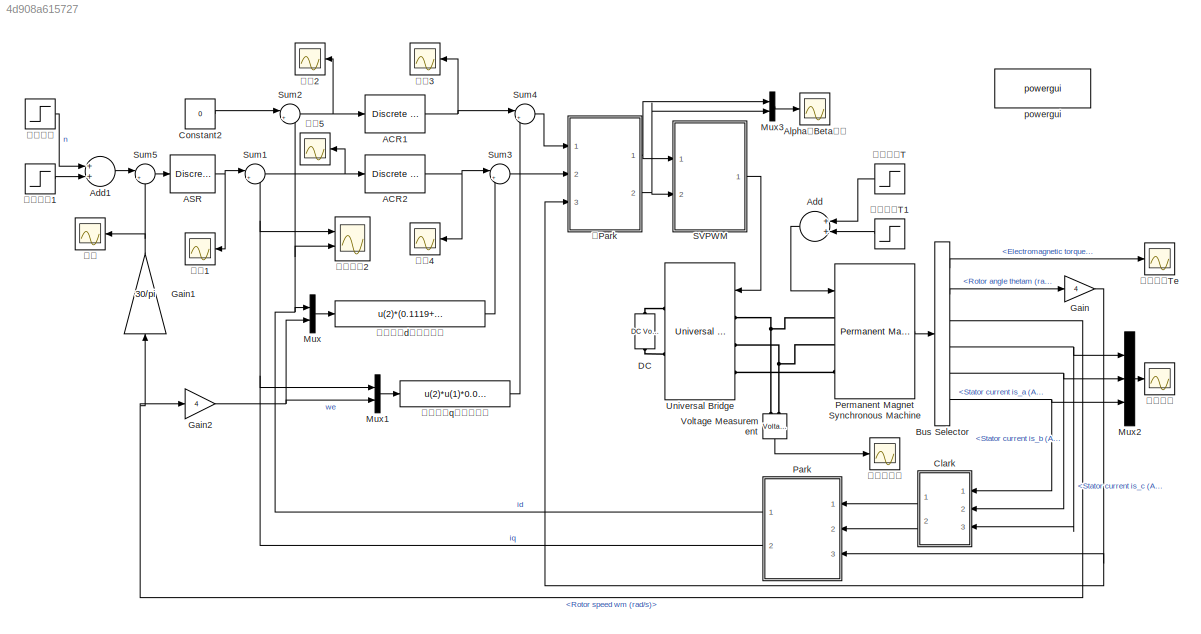
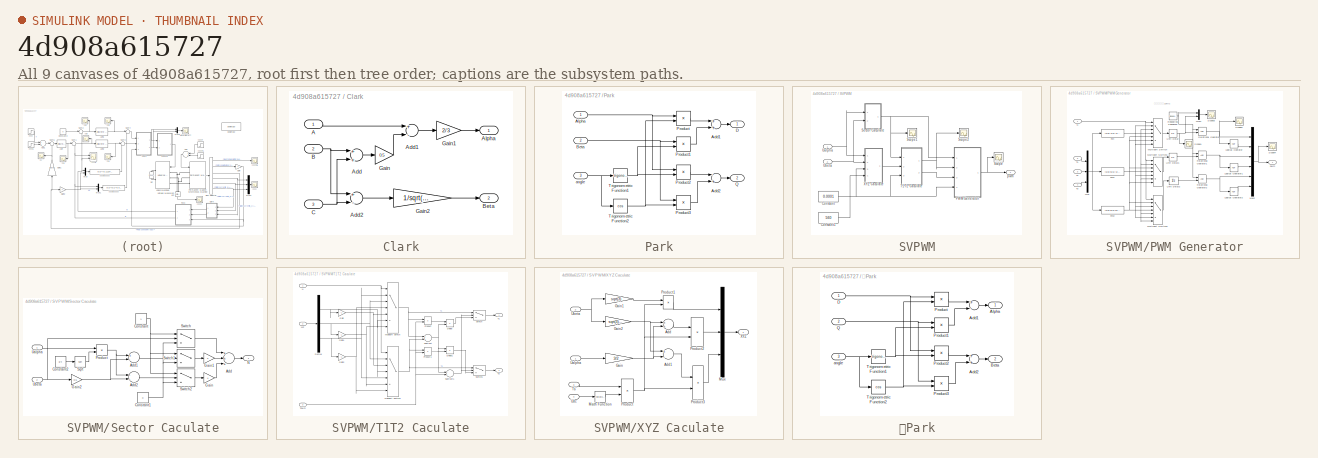
[diagram: thumbnail index - all 9 canvases of the model, root first then tree order]
MODEL slx_4d908a615727
KIND model
CONFIG AbsTol = auto
CONFIG FixedStep = auto
CONFIG InitFcn = flux=0.192;\nLd=0.0006033;\nLq=0.0006668;\nR=0.05;
CONFIG MaxStep = auto
CONFIG MinStep = auto
CONFIG RelTol = 1e-3
CONFIG SampleTimeConstraint = Unconstrained
CONFIG Solver = ode23tb
CONFIG SolverMode = Auto
CONFIG SolverName = ode23tb
CONFIG StartTime = 0.0
CONFIG StopTime = 1
BLOCK [Reference] ACR1  REF=powerlib_extras/Discrete 
Control Blocks/Discrete
PI Controller
  Ports = [1, 1]
  SourceBlock = powerlib_extras/Discrete \nControl Blocks/Discrete\nPI Controller
  SourceType = Discrete PI Controller
BLOCK [Reference] ACR2  REF=powerlib_extras/Discrete 
Control Blocks/Discrete
PI Controller
  Ports = [1, 1]
  SourceBlock = powerlib_extras/Discrete \nControl Blocks/Discrete\nPI Controller
  SourceType = Discrete PI Controller
BLOCK [Reference] ASR  REF=powerlib_extras/Discrete 
Control Blocks/Discrete
PI Controller
  Ports = [1, 1]
  SourceBlock = powerlib_extras/Discrete \nControl Blocks/Discrete\nPI Controller
  SourceType = Discrete PI Controller
BLOCK [Sum] Add
  InputSameDT = off
  OutDataTypeStr = Inherit: Inherit via internal rule
  Ports = [2, 1]
  SaturateOnIntegerOverflow = off
BLOCK [Sum] Add1
  InputSameDT = off
  OutDataTypeStr = Inherit: Inherit via internal rule
  Ports = [2, 1]
  SaturateOnIntegerOverflow = off
BLOCK [Scope] Alpha、Beta电压
  Ports = [1]
  ScopeSpecificationString = Simulink.scopes.TimeScopeBlockCfg('CurrentConfiguration', extmgr.ConfigurationSet(extmgr.Configuration('Core','General UI',true),extmgr.Configuration('Core','Source UI',true),extmgr.Configuration('Sources','WiredSimulink',true,'DataLoggingVariableName','ScopeData10','DataLoggingSaveFormat','StructureWithTime','SampleTime','0.00001','DataLoggingDecimation','1','DataLoggingDecimateData',true),extmgr...<+1767ch>
BLOCK [BusSelector] Bus Selector
  OutputSignals = Electromagnetic torque Te (N*m),Rotor angle thetam (rad),Rotor speed wm (rad/s),Stator current is_c (A),Stator current is_b (A),Stator current is_a (A)
  Ports = [1, 6]
BLOCK [SubSystem] Clark
  Ports = [3, 2]
  RequestExecContextInheritance = off
  Variant = off
BLOCK [Inport] Clark/A
  IconDisplay = Port number
BLOCK [Sum] Clark/Add
  InputSameDT = off
  OutDataTypeStr = Inherit: Inherit via internal rule
  Ports = [2, 1]
  SaturateOnIntegerOverflow = off
BLOCK [Sum] Clark/Add1
  InputSameDT = off
  Inputs = +-
  OutDataTypeStr = Inherit: Inherit via internal rule
  Ports = [2, 1]
  SaturateOnIntegerOverflow = off
BLOCK [Sum] Clark/Add2
  InputSameDT = off
  Inputs = +-
  OutDataTypeStr = Inherit: Inherit via internal rule
  Ports = [2, 1]
  SaturateOnIntegerOverflow = off
BLOCK [Outport] Clark/Alpha
  IconDisplay = Port number
BLOCK [Inport] Clark/B
  IconDisplay = Port number
  Port = 2
BLOCK [Outport] Clark/Beta
  IconDisplay = Port number
  Port = 2
BLOCK [Inport] Clark/C
  IconDisplay = Port number
  Port = 3
BLOCK [Gain] Clark/Gain
  Gain = 0.5
  OutDataTypeStr = Inherit: Inherit via internal rule
  ParamDataTypeStr = Inherit: Inherit via internal rule
  SaturateOnIntegerOverflow = off
BLOCK [Gain] Clark/Gain1
  Gain = 2/3
  OutDataTypeStr = Inherit: Inherit via internal rule
  ParamDataTypeStr = Inherit: Inherit via internal rule
  SaturateOnIntegerOverflow = off
BLOCK [Gain] Clark/Gain2
  Gain = 1/sqrt(3)
  OutDataTypeStr = Inherit: Inherit via internal rule
  ParamDataTypeStr = Inherit: Inherit via internal rule
  SaturateOnIntegerOverflow = off
BLOCK [Constant] Constant2
  Value = 0
BLOCK [Reference] DC  REF=powerlib/Electrical
Sources/DC Voltage Source
  Ports = [0, 0, 0, 0, 0, 1, 1]
  SourceBlock = powerlib/Electrical\nSources/DC Voltage Source
  SourceType = DC Voltage Source
BLOCK [Gain] Gain
  Gain = 4
  OutDataTypeStr = Inherit: Inherit via internal rule
  ParamDataTypeStr = Inherit: Inherit via internal rule
  SaturateOnIntegerOverflow = off
BLOCK [Gain] Gain1
  Gain = 30/pi
  OutDataTypeStr = Inherit: Inherit via internal rule
  ParamDataTypeStr = Inherit: Inherit via internal rule
  SaturateOnIntegerOverflow = off
BLOCK [Gain] Gain2
  Gain = 4
  OutDataTypeStr = Inherit: Inherit via internal rule
  ParamDataTypeStr = Inherit: Inherit via internal rule
  SaturateOnIntegerOverflow = off
BLOCK [Mux] Mux
  DisplayOption = bar
  Inputs = 2
  Ports = [2, 1]
BLOCK [Mux] Mux1
  DisplayOption = bar
  Inputs = 2
  Ports = [2, 1]
BLOCK [Mux] Mux2
  DisplayOption = bar
  Inputs = 3
  Ports = [3, 1]
BLOCK [Mux] Mux3
  DisplayOption = bar
  Inputs = 2
  Ports = [2, 1]
BLOCK [SubSystem] Park
  Ports = [3, 2]
  RequestExecContextInheritance = off
  Variant = off
BLOCK [Sum] Park/Add1
  InputSameDT = off
  OutDataTypeStr = Inherit: Inherit via internal rule
  Ports = [2, 1]
  SaturateOnIntegerOverflow = off
BLOCK [Sum] Park/Add2
  InputSameDT = off
  Inputs = -+
  OutDataTypeStr = Inherit: Inherit via internal rule
  Ports = [2, 1]
  SaturateOnIntegerOverflow = off
BLOCK [Inport] Park/Alpha
  IconDisplay = Port number
BLOCK [Inport] Park/Beta
  IconDisplay = Port number
  Port = 2
BLOCK [Outport] Park/D
  IconDisplay = Port number
BLOCK [Product] Park/Product
  InputSameDT = off
  OutDataTypeStr = Inherit: Inherit via internal rule
  Ports = [2, 1]
  RndMeth = Floor
  SaturateOnIntegerOverflow = off
BLOCK [Product] Park/Product1
  InputSameDT = off
  OutDataTypeStr = Inherit: Inherit via internal rule
  Ports = [2, 1]
  RndMeth = Floor
  SaturateOnIntegerOverflow = off
BLOCK [Product] Park/Product2
  InputSameDT = off
  OutDataTypeStr = Inherit: Inherit via internal rule
  Ports = [2, 1]
  RndMeth = Floor
  SaturateOnIntegerOverflow = off
BLOCK [Product] Park/Product3
  InputSameDT = off
  OutDataTypeStr = Inherit: Inherit via internal rule
  Ports = [2, 1]
  RndMeth = Floor
  SaturateOnIntegerOverflow = off
BLOCK [Outport] Park/Q
  IconDisplay = Port number
  Port = 2
BLOCK [Trigonometry] Park/Trigonometric Function1
  Ports = [1, 1]
BLOCK [Trigonometry] Park/Trigonometric Function2
  Operator = cos
  Ports = [1, 1]
BLOCK [Inport] Park/angle
  IconDisplay = Port number
  Port = 3
BLOCK [Reference] Permanent Magnet Synchronous Machine  REF=powerlib/Machines/Permanent Magnet
Synchronous Machine
  Ports = [1, 1, 0, 0, 0, 3]
  SourceBlock = powerlib/Machines/Permanent Magnet\nSynchronous Machine
  SourceType = Permanent Magnet Synchronous Machine
BLOCK [SubSystem] SVPWM
  Ports = [2, 1]
  RequestExecContextInheritance = off
  Variant = off
BLOCK [Constant] SVPWM/Constant
  Value = 0.0001
BLOCK [Constant] SVPWM/Constant1
  Value = 560
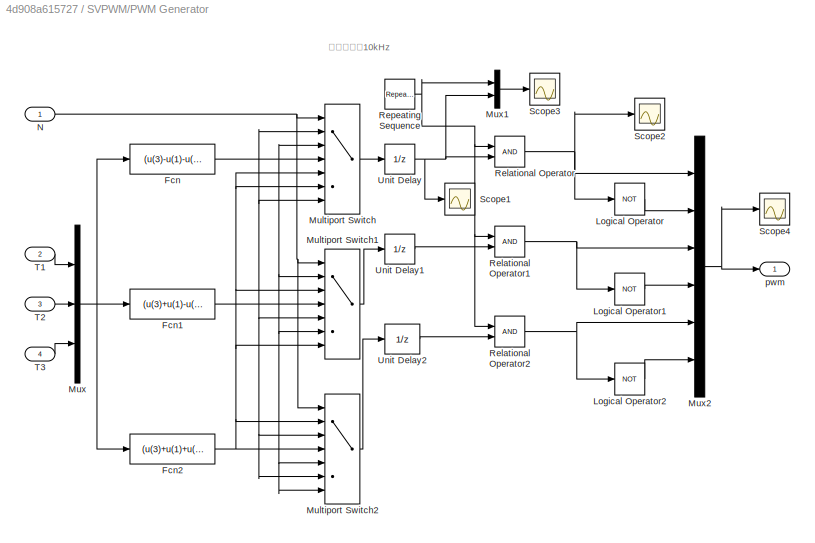
BLOCK [SubSystem] SVPWM/PWM Generator
  Ports = [4, 1]
  RequestExecContextInheritance = off
  Variant = off
BLOCK [Fcn] SVPWM/PWM Generator/Fcn
  Expr = (u(3)-u(1)-u(2))/4
BLOCK [Fcn] SVPWM/PWM Generator/Fcn1
  Expr = (u(3)+u(1)-u(2))/4
BLOCK [Fcn] SVPWM/PWM Generator/Fcn2
  Expr = (u(3)+u(1)+u(2))/4
BLOCK [Logic] SVPWM/PWM Generator/Logical Operator
  AllPortsSameDT = off
  Operator = NOT
  OutDataTypeStr = boolean
  Ports = [1, 1]
BLOCK [Logic] SVPWM/PWM Generator/Logical Operator1
  AllPortsSameDT = off
  Operator = NOT
  OutDataTypeStr = boolean
  Ports = [1, 1]
BLOCK [Logic] SVPWM/PWM Generator/Logical Operator2
  AllPortsSameDT = off
  Operator = NOT
  OutDataTypeStr = boolean
  Ports = [1, 1]
BLOCK [MultiPortSwitch] SVPWM/PWM Generator/Multiport Switch
  DiagnosticForDefault = None
  InputSameDT = off
  Inputs = 6
  Ports = [7, 1]
  SaturateOnIntegerOverflow = off
BLOCK [MultiPortSwitch] SVPWM/PWM Generator/Multiport Switch1
  DiagnosticForDefault = None
  InputSameDT = off
  Inputs = 6
  Ports = [7, 1]
  SaturateOnIntegerOverflow = off
BLOCK [MultiPortSwitch] SVPWM/PWM Generator/Multiport Switch2
  DiagnosticForDefault = None
  InputSameDT = off
  Inputs = 6
  Ports = [7, 1]
  SaturateOnIntegerOverflow = off
BLOCK [Mux] SVPWM/PWM Generator/Mux
  DisplayOption = bar
  Inputs = 3
  Ports = [3, 1]
BLOCK [Mux] SVPWM/PWM Generator/Mux1
  DisplayOption = bar
  Inputs = 2
  Ports = [2, 1]
BLOCK [Mux] SVPWM/PWM Generator/Mux2
  DisplayOption = bar
  Inputs = 6
  Ports = [6, 1]
BLOCK [Inport] SVPWM/PWM Generator/N
  IconDisplay = Port number
BLOCK [RelationalOperator] SVPWM/PWM Generator/Relational Operator
  InputSameDT = off
  OutDataTypeStr = boolean
  Ports = [2, 1]
BLOCK [RelationalOperator] SVPWM/PWM Generator/Relational Operator1
  InputSameDT = off
  OutDataTypeStr = boolean
  Ports = [2, 1]
BLOCK [RelationalOperator] SVPWM/PWM Generator/Relational Operator2
  InputSameDT = off
  OutDataTypeStr = boolean
  Ports = [2, 1]
BLOCK [Reference] SVPWM/PWM Generator/Repeating Sequence  REF=simulink/Sources/Repeating
Sequence
  Ports = [0, 1]
  SourceBlock = simulink/Sources/Repeating\nSequence
  SourceType = Repeating table
BLOCK [Scope] SVPWM/PWM Generator/Scope1
  Ports = [1]
  ScopeSpecificationString = Simulink.scopes.TimeScopeBlockCfg('CurrentConfiguration', extmgr.ConfigurationSet(extmgr.Configuration('Core','General UI',true),extmgr.Configuration('Core','Source UI',true),extmgr.Configuration('Sources','WiredSimulink',true,'DataLoggingVariableName','ScopeData1','DataLoggingSaveFormat','Array','DataLoggingDecimation','1','DataLoggingDecimateData',true),extmgr.Configuration('Visuals','Time Domai...<+1734ch>
BLOCK [Scope] SVPWM/PWM Generator/Scope2
  Ports = [1]
  ScopeSpecificationString = Simulink.scopes.TimeScopeBlockCfg('CurrentConfiguration', extmgr.ConfigurationSet(extmgr.Configuration('Core','General UI',true),extmgr.Configuration('Core','Source UI',true),extmgr.Configuration('Sources','WiredSimulink',true,'DataLoggingVariableName','ScopeData3','DataLoggingSaveFormat','Array','DataLoggingDecimation','1','DataLoggingDecimateData',true),extmgr.Configuration('Visuals','Time Domai...<+1728ch>
BLOCK [Scope] SVPWM/PWM Generator/Scope3
  Ports = [1]
  ScopeSpecificationString = Simulink.scopes.TimeScopeBlockCfg('CurrentConfiguration', extmgr.ConfigurationSet(extmgr.Configuration('Core','General UI',true),extmgr.Configuration('Core','Source UI',true),extmgr.Configuration('Sources','WiredSimulink',true,'DataLoggingVariableName','ScopeData4','DataLoggingSaveFormat','Array','DataLoggingDecimation','1','DataLoggingDecimateData',true,'SampleTime','0.000001'),extmgr.Configurati...<+1784ch>
BLOCK [Scope] SVPWM/PWM Generator/Scope4
  Ports = [1]
  ScopeSpecificationString = C++SS(StrPVP('Location','[5, 34, 1925, 1020]'),StrPVP('Open','off'),MxPVP('AxesTitles',24,'struct(''axes1'',''%<SignalLabel>'')'),MxPVP('ScopeGraphics',28,'struct(''FigureColor'',''[0.5 0.5 0.5]'',''AxesColor'',''[0 0 0]'',''AxesTickColor'',''[1 1 1]'',''LineColors'',''[1 1 0;1 0 1;0 1 1;1 0 0;0 1 0;0 0 1]'',''LineStyles'',''-|-|-|-|-|-'',''LineWidths'',''[0.5 0.5 0.5 0.5 0.5 0.5]'',''MarkerStyles...<+224ch>
BLOCK [Inport] SVPWM/PWM Generator/T1
  IconDisplay = Port number
  Port = 2
BLOCK [Inport] SVPWM/PWM Generator/T2
  IconDisplay = Port number
  Port = 3
BLOCK [Inport] SVPWM/PWM Generator/T3
  IconDisplay = Port number
  Port = 4
BLOCK [UnitDelay] SVPWM/PWM Generator/Unit Delay
  InputProcessing = Elements as channels (sample based)
  SampleTime = 0.0001
BLOCK [UnitDelay] SVPWM/PWM Generator/Unit Delay1
  InputProcessing = Elements as channels (sample based)
  SampleTime = 0.0001
BLOCK [UnitDelay] SVPWM/PWM Generator/Unit Delay2
  InputProcessing = Elements as channels (sample based)
  SampleTime = 0.0001
BLOCK [Outport] SVPWM/PWM Generator/pwm
  IconDisplay = Port number
BLOCK [Scope] SVPWM/Scope
  Ports = [1]
  ScopeSpecificationString = C++SS(StrPVP('Location','[5, 34, 1925, 1020]'),StrPVP('Open','off'),StrPVP('ZoomMode','xonly'),MxPVP('AxesTitles',24,'struct(''axes1'',''%<SignalLabel>'')'),MxPVP('ScopeGraphics',28,'struct(''FigureColor'',''[0.5 0.5 0.5]'',''AxesColor'',''[0 0 0]'',''AxesTickColor'',''[1 1 1]'',''LineColors'',''[1 1 0;1 0 1;0 1 1;1 0 0;0 1 0;0 0 1]'',''LineStyles'',''-|-|-|-|-|-'',''LineWidths'',''[0.5 0.5 0.5 0....<+219ch>
BLOCK [Scope] SVPWM/Scope1
  Ports = [1]
  ScopeSpecificationString = Simulink.scopes.TimeScopeBlockCfg('CurrentConfiguration', extmgr.ConfigurationSet(extmgr.Configuration('Core','General UI',true),extmgr.Configuration('Core','Source UI',true),extmgr.Configuration('Sources','WiredSimulink',true,'DataLoggingVariableName','ScopeData2','DataLoggingSaveFormat','Array','DataLoggingDecimation','1','DataLoggingDecimateData',true),extmgr.Configuration('Visuals','Time Domai...<+1694ch>
BLOCK [Scope] SVPWM/Scope2
  Ports = [1]
  ScopeSpecificationString = C++SS(StrPVP('Location','[5, 34, 1925, 1020]'),StrPVP('Open','off'),StrPVP('ZoomMode','xonly'),MxPVP('AxesTitles',24,'struct(''axes1'',''%<SignalLabel>'')'),MxPVP('ScopeGraphics',28,'struct(''FigureColor'',''[0.5 0.5 0.5]'',''AxesColor'',''[0 0 0]'',''AxesTickColor'',''[1 1 1]'',''LineColors'',''[1 1 0;1 0 1;0 1 1;1 0 0;0 1 0;0 0 1]'',''LineStyles'',''-|-|-|-|-|-'',''LineWidths'',''[0.5 0.5 0.5 0....<+252ch>
BLOCK [SubSystem] SVPWM/Sector Caculate
  Ports = [2, 1]
  RequestExecContextInheritance = off
  Variant = off
BLOCK [Sum] SVPWM/Sector Caculate/Add
  InputSameDT = off
  Inputs = +++
  OutDataTypeStr = Inherit: Inherit via internal rule
  Ports = [3, 1]
  SaturateOnIntegerOverflow = off
BLOCK [Sum] SVPWM/Sector Caculate/Add1
  InputSameDT = off
  Inputs = +-
  OutDataTypeStr = Inherit: Inherit via internal rule
  Ports = [2, 1]
  SaturateOnIntegerOverflow = off
BLOCK [Sum] SVPWM/Sector Caculate/Add2
  InputSameDT = off
  Inputs = --
  OutDataTypeStr = Inherit: Inherit via internal rule
  Ports = [2, 1]
  SaturateOnIntegerOverflow = off
BLOCK [Constant] SVPWM/Sector Caculate/Constant
BLOCK [Constant] SVPWM/Sector Caculate/Constant1
  Value = 0
BLOCK [Constant] SVPWM/Sector Caculate/Constant2
  Value = 3/4
BLOCK [Gain] SVPWM/Sector Caculate/Gain
  Gain = 4
  OutDataTypeStr = Inherit: Inherit via internal rule
  ParamDataTypeStr = Inherit: Inherit via internal rule
  SaturateOnIntegerOverflow = off
BLOCK [Gain] SVPWM/Sector Caculate/Gain1
  Gain = 2
  OutDataTypeStr = Inherit: Inherit via internal rule
  ParamDataTypeStr = Inherit: Inherit via internal rule
  SaturateOnIntegerOverflow = off
BLOCK [Gain] SVPWM/Sector Caculate/Gain2
  Gain = 0.5
  OutDataTypeStr = Inherit: Inherit via internal rule
  ParamDataTypeStr = Inherit: Inherit via internal rule
  SaturateOnIntegerOverflow = off
BLOCK [Outport] SVPWM/Sector Caculate/N
  IconDisplay = Port number
BLOCK [Product] SVPWM/Sector Caculate/Product
  InputSameDT = off
  OutDataTypeStr = Inherit: Inherit via internal rule
  Ports = [2, 1]
  RndMeth = Floor
  SaturateOnIntegerOverflow = off
BLOCK [Sqrt] SVPWM/Sector Caculate/Sqrt
BLOCK [Switch] SVPWM/Sector Caculate/Switch
  Criteria = u2 > Threshold
  InputSameDT = off
  SaturateOnIntegerOverflow = off
BLOCK [Switch] SVPWM/Sector Caculate/Switch1
  Criteria = u2 > Threshold
  InputSameDT = off
  SaturateOnIntegerOverflow = off
BLOCK [Switch] SVPWM/Sector Caculate/Switch2
  Criteria = u2 > Threshold
  InputSameDT = off
  SaturateOnIntegerOverflow = off
BLOCK [Inport] SVPWM/Sector Caculate/Ualpha
  IconDisplay = Port number
BLOCK [Inport] SVPWM/Sector Caculate/Ubeta 
  IconDisplay = Port number
  Port = 2
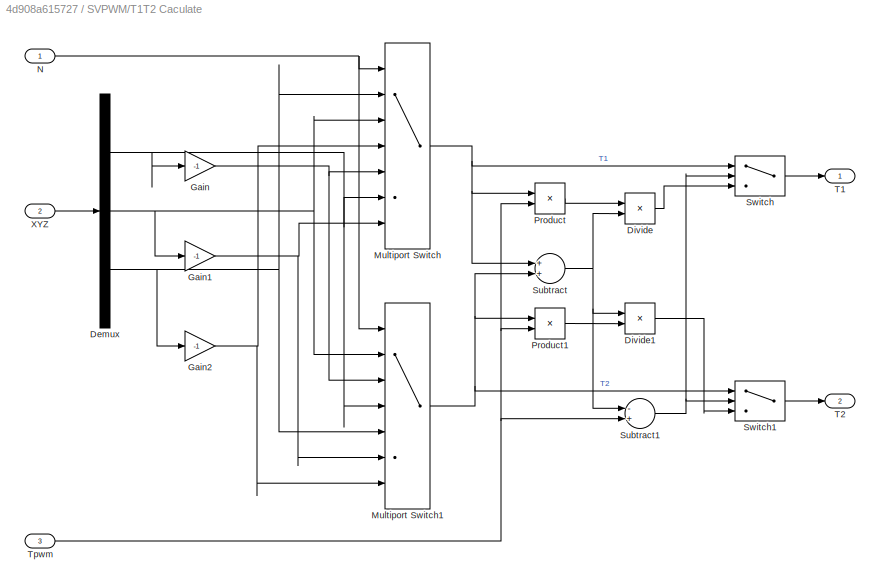
BLOCK [SubSystem] SVPWM/T1T2 Caculate
  Ports = [3, 2]
  RequestExecContextInheritance = off
  Variant = off
BLOCK [Demux] SVPWM/T1T2 Caculate/Demux
  DisplayOption = bar
  Outputs = 3
  Ports = [1, 3]
BLOCK [Product] SVPWM/T1T2 Caculate/Divide
  InputSameDT = off
  Inputs = */
  OutDataTypeStr = Inherit: Inherit via internal rule
  Ports = [2, 1]
  RndMeth = Floor
  SaturateOnIntegerOverflow = off
BLOCK [Product] SVPWM/T1T2 Caculate/Divide1
  InputSameDT = off
  Inputs = /*
  OutDataTypeStr = Inherit: Inherit via internal rule
  Ports = [2, 1]
  RndMeth = Floor
  SaturateOnIntegerOverflow = off
BLOCK [Gain] SVPWM/T1T2 Caculate/Gain
  Gain = -1
  OutDataTypeStr = Inherit: Inherit via internal rule
  ParamDataTypeStr = Inherit: Inherit via internal rule
  SaturateOnIntegerOverflow = off
BLOCK [Gain] SVPWM/T1T2 Caculate/Gain1
  Gain = -1
  OutDataTypeStr = Inherit: Inherit via internal rule
  ParamDataTypeStr = Inherit: Inherit via internal rule
  SaturateOnIntegerOverflow = off
BLOCK [Gain] SVPWM/T1T2 Caculate/Gain2
  Gain = -1
  OutDataTypeStr = Inherit: Inherit via internal rule
  ParamDataTypeStr = Inherit: Inherit via internal rule
  SaturateOnIntegerOverflow = off
BLOCK [MultiPortSwitch] SVPWM/T1T2 Caculate/Multiport Switch
  DiagnosticForDefault = None
  InputSameDT = off
  Inputs = 6
  Ports = [7, 1]
  SaturateOnIntegerOverflow = off
BLOCK [MultiPortSwitch] SVPWM/T1T2 Caculate/Multiport Switch1
  DiagnosticForDefault = None
  InputSameDT = off
  Inputs = 6
  Ports = [7, 1]
  SaturateOnIntegerOverflow = off
BLOCK [Inport] SVPWM/T1T2 Caculate/N
  IconDisplay = Port number
BLOCK [Product] SVPWM/T1T2 Caculate/Product
  InputSameDT = off
  OutDataTypeStr = Inherit: Inherit via internal rule
  Ports = [2, 1]
  RndMeth = Floor
  SaturateOnIntegerOverflow = off
BLOCK [Product] SVPWM/T1T2 Caculate/Product1
  InputSameDT = off
  OutDataTypeStr = Inherit: Inherit via internal rule
  Ports = [2, 1]
  RndMeth = Floor
  SaturateOnIntegerOverflow = off
BLOCK [Sum] SVPWM/T1T2 Caculate/Subtract
  InputSameDT = off
  OutDataTypeStr = Inherit: Inherit via internal rule
  Ports = [2, 1]
  SaturateOnIntegerOverflow = off
BLOCK [Sum] SVPWM/T1T2 Caculate/Subtract1
  InputSameDT = off
  Inputs = -+
  OutDataTypeStr = Inherit: Inherit via internal rule
  Ports = [2, 1]
  SaturateOnIntegerOverflow = off
BLOCK [Switch] SVPWM/T1T2 Caculate/Switch
  Criteria = u2 > Threshold
  InputSameDT = off
  SaturateOnIntegerOverflow = off
BLOCK [Switch] SVPWM/T1T2 Caculate/Switch1
  Criteria = u2 > Threshold
  InputSameDT = off
  SaturateOnIntegerOverflow = off
BLOCK [Outport] SVPWM/T1T2 Caculate/T1 
  IconDisplay = Port number
BLOCK [Outport] SVPWM/T1T2 Caculate/T2
  IconDisplay = Port number
  Port = 2
BLOCK [Inport] SVPWM/T1T2 Caculate/Tpwm
  IconDisplay = Port number
  Port = 3
BLOCK [Inport] SVPWM/T1T2 Caculate/XYZ
  IconDisplay = Port number
  Port = 2
BLOCK [Inport] SVPWM/Ualpha
  IconDisplay = Port number
BLOCK [Inport] SVPWM/Ubeta
  IconDisplay = Port number
  Port = 2
BLOCK [SubSystem] SVPWM/XYZ Caculate
  Ports = [4, 1]
  RequestExecContextInheritance = off
  Variant = off
BLOCK [Sum] SVPWM/XYZ Caculate/Add
  InputSameDT = off
  OutDataTypeStr = Inherit: Inherit via internal rule
  Ports = [2, 1]
  SaturateOnIntegerOverflow = off
BLOCK [Sum] SVPWM/XYZ Caculate/Add1
  InputSameDT = off
  Inputs = +-
  OutDataTypeStr = Inherit: Inherit via internal rule
  Ports = [2, 1]
  SaturateOnIntegerOverflow = off
BLOCK [Gain] SVPWM/XYZ Caculate/Gain
  Gain = 3/2
  OutDataTypeStr = Inherit: Inherit via internal rule
  ParamDataTypeStr = Inherit: Inherit via internal rule
  SaturateOnIntegerOverflow = off
BLOCK [Gain] SVPWM/XYZ Caculate/Gain1
  Gain = sqrt(3)
  OutDataTypeStr = Inherit: Inherit via internal rule
  ParamDataTypeStr = Inherit: Inherit via internal rule
  SaturateOnIntegerOverflow = off
BLOCK [Gain] SVPWM/XYZ Caculate/Gain2
  Gain = sqrt(3)/2
  OutDataTypeStr = Inherit: Inherit via internal rule
  ParamDataTypeStr = Inherit: Inherit via internal rule
  SaturateOnIntegerOverflow = off
BLOCK [Math] SVPWM/XYZ Caculate/Math Function
  Operator = reciprocal
  Ports = [1, 1]
BLOCK [Mux] SVPWM/XYZ Caculate/Mux
  DisplayOption = bar
  Inputs = 3
  Ports = [3, 1]
BLOCK [Product] SVPWM/XYZ Caculate/Product
  InputSameDT = off
  OutDataTypeStr = Inherit: Inherit via internal rule
  Ports = [2, 1]
  RndMeth = Floor
  SaturateOnIntegerOverflow = off
BLOCK [Product] SVPWM/XYZ Caculate/Product1
  InputSameDT = off
  OutDataTypeStr = Inherit: Inherit via internal rule
  Ports = [2, 1]
  RndMeth = Floor
  SaturateOnIntegerOverflow = off
BLOCK [Product] SVPWM/XYZ Caculate/Product2
  InputSameDT = off
  OutDataTypeStr = Inherit: Inherit via internal rule
  Ports = [2, 1]
  RndMeth = Floor
  SaturateOnIntegerOverflow = off
BLOCK [Product] SVPWM/XYZ Caculate/Product3
  InputSameDT = off
  OutDataTypeStr = Inherit: Inherit via internal rule
  Ports = [2, 1]
  RndMeth = Floor
  SaturateOnIntegerOverflow = off
BLOCK [Inport] SVPWM/XYZ Caculate/Ts
  IconDisplay = Port number
  Port = 3
BLOCK [Inport] SVPWM/XYZ Caculate/Ualpha
  IconDisplay = Port number
BLOCK [Inport] SVPWM/XYZ Caculate/Ubeta
  IconDisplay = Port number
  Port = 2
BLOCK [Inport] SVPWM/XYZ Caculate/Udc
  IconDisplay = Port number
  Port = 4
BLOCK [Outport] SVPWM/XYZ Caculate/XYZ
  IconDisplay = Port number
BLOCK [Outport] SVPWM/pwm
  IconDisplay = Port number
BLOCK [Sum] Sum1
  IconShape = round
  InputSameDT = off
  Inputs = |+-
  OutDataTypeStr = Inherit: Inherit via internal rule
  Ports = [2, 1]
  SaturateOnIntegerOverflow = off
BLOCK [Sum] Sum2
  IconShape = round
  InputSameDT = off
  Inputs = |+-
  OutDataTypeStr = Inherit: Inherit via internal rule
  Ports = [2, 1]
  SaturateOnIntegerOverflow = off
BLOCK [Sum] Sum3
  IconShape = round
  InputSameDT = off
  Inputs = |++
  OutDataTypeStr = Inherit: Inherit via internal rule
  Ports = [2, 1]
  SaturateOnIntegerOverflow = off
BLOCK [Sum] Sum4
  IconShape = round
  InputSameDT = off
  Inputs = |+-
  OutDataTypeStr = Inherit: Inherit via internal rule
  Ports = [2, 1]
  SaturateOnIntegerOverflow = off
BLOCK [Sum] Sum5
  IconShape = round
  InputSameDT = off
  Inputs = |+-
  OutDataTypeStr = Inherit: Inherit via internal rule
  Ports = [2, 1]
  SaturateOnIntegerOverflow = off
BLOCK [Reference] Universal Bridge  REF=powerlib/Power
Electronics/Universal Bridge
  Ports = [1, 0, 0, 0, 0, 3, 2]
  SourceBlock = powerlib/Power\nElectronics/Universal Bridge
  SourceType = Universal Bridge
BLOCK [Reference] Voltage Measurement  REF=powerlib/Measurements/Voltage Measurement
  Ports = [0, 1, 0, 0, 0, 2]
  SourceBlock = powerlib/Measurements/Voltage Measurement
  SourceType = Voltage Measurement
  UserDataPersistent = on
BLOCK [Reference] powergui  REF=powerlib/powergui
  Ports = []
  Priority = 1
  SourceBlock = powerlib/powergui
  SourceType = PSB option menu block
  UserDataPersistent = on
BLOCK [Fcn] 前馈解耦d轴补偿电压
  Expr = u(2)*(0.1119+u(1)*0.0009215)
BLOCK [Fcn] 前馈解耦q轴补偿电压
  Expr = u(2)*u(1)*0.001018
BLOCK [SubSystem] 反Park
  Ports = [3, 2]
  RequestExecContextInheritance = off
  Variant = off
BLOCK [Sum] 反Park/Add1
  InputSameDT = off
  Inputs = +-
  OutDataTypeStr = Inherit: Inherit via internal rule
  Ports = [2, 1]
  SaturateOnIntegerOverflow = off
BLOCK [Sum] 反Park/Add2
  InputSameDT = off
  OutDataTypeStr = Inherit: Inherit via internal rule
  Ports = [2, 1]
  SaturateOnIntegerOverflow = off
BLOCK [Outport] 反Park/Alpha
  IconDisplay = Port number
BLOCK [Outport] 反Park/Beta
  IconDisplay = Port number
  Port = 2
BLOCK [Inport] 反Park/D
  IconDisplay = Port number
BLOCK [Product] 反Park/Product
  InputSameDT = off
  OutDataTypeStr = Inherit: Inherit via internal rule
  Ports = [2, 1]
  RndMeth = Floor
  SaturateOnIntegerOverflow = off
BLOCK [Product] 反Park/Product1
  InputSameDT = off
  OutDataTypeStr = Inherit: Inherit via internal rule
  Ports = [2, 1]
  RndMeth = Floor
  SaturateOnIntegerOverflow = off
BLOCK [Product] 反Park/Product2
  InputSameDT = off
  OutDataTypeStr = Inherit: Inherit via internal rule
  Ports = [2, 1]
  RndMeth = Floor
  SaturateOnIntegerOverflow = off
BLOCK [Product] 反Park/Product3
  InputSameDT = off
  OutDataTypeStr = Inherit: Inherit via internal rule
  Ports = [2, 1]
  RndMeth = Floor
  SaturateOnIntegerOverflow = off
BLOCK [Inport] 反Park/Q
  IconDisplay = Port number
  Port = 2
BLOCK [Trigonometry] 反Park/Trigonometric Function1
  Ports = [1, 1]
BLOCK [Trigonometry] 反Park/Trigonometric Function2
  Operator = cos
  Ports = [1, 1]
BLOCK [Inport] 反Park/angle
  IconDisplay = Port number
  Port = 3
BLOCK [Scope] 定子电流
  Ports = [1]
  ScopeSpecificationString = Simulink.scopes.TimeScopeBlockCfg('CurrentConfiguration', extmgr.ConfigurationSet(extmgr.Configuration('Core','General UI',true),extmgr.Configuration('Core','Source UI',true),extmgr.Configuration('Sources','WiredSimulink',true,'DataLogging',true,'DataLoggingVariableName','ScopeData52','DataLoggingSaveFormat','StructureWithTime','SampleTime','0.00001','DataLoggingDecimation','1','DataLoggingDecimat...<+1839ch>
BLOCK [Scope] 定子电流2
  NumInputPorts = 2
  Ports = [2]
  ScopeSpecificationString = Simulink.scopes.TimeScopeBlockCfg('CurrentConfiguration', extmgr.ConfigurationSet(extmgr.Configuration('Core','General UI',true),extmgr.Configuration('Core','Source UI',true),extmgr.Configuration('Sources','WiredSimulink',true,'DataLoggingVariableName','ScopeData2'),extmgr.Configuration('Visuals','Time Domain',true,'SerializedDisplays',{struct('MinYLimReal','-17.88759','MaxYLimReal','81.81327','YL...<+1474ch>
BLOCK [Scope] 定子线电压
  Ports = [1]
  ScopeSpecificationString = C++SS(StrPVP('Location','[1, 55, 1921, 1041]'),StrPVP('Open','off'),StrPVP('ZoomMode','xonly'),MxPVP('AxesTitles',24,'struct(''axes1'',''%<SignalLabel>'')'),MxPVP('ScopeGraphics',28,'struct(''FigureColor'',''[0.5 0.5 0.5]'',''AxesColor'',''[0 0 0]'',''AxesTickColor'',''[1 1 1]'',''LineColors'',''[1 1 0;1 0 1;0 1 1;1 0 0;0 1 0;0 0 1]'',''LineStyles'',''-|-|-|-|-|-'',''LineWidths'',''[0.5 0.5 0.5 0....<+303ch>
BLOCK [Scope] 电磁转矩Te
  Ports = [1]
  ScopeSpecificationString = Simulink.scopes.TimeScopeBlockCfg('CurrentConfiguration', extmgr.ConfigurationSet(extmgr.Configuration('Core','General UI',true),extmgr.Configuration('Core','Source UI',true),extmgr.Configuration('Sources','WiredSimulink',true,'DataLogging',true,'DataLoggingVariableName','ScopeData51','DataLoggingSaveFormat','StructureWithTime','SampleTime','0.00001','DataLoggingDecimation','1','DataLoggingDecimat...<+1764ch>
BLOCK [Step] 给定转速
  After = 1000
  Before = 1000
  SampleTime = 0
  Time = 0
BLOCK [Step] 给定转速1
  After = 200
  SampleTime = 0
  Time = 0.7
BLOCK [Step] 负载转矩T
  After = 20
  SampleTime = 0
  Time = 0.5
BLOCK [Step] 负载转矩T1
  After = 0
  SampleTime = 0
  Time = 0.03
BLOCK [Scope] 转速
  Ports = [1]
  ScopeSpecificationString = Simulink.scopes.TimeScopeBlockCfg('CurrentConfiguration', extmgr.ConfigurationSet(extmgr.Configuration('Core','General UI',true),extmgr.Configuration('Core','Source UI',true),extmgr.Configuration('Sources','WiredSimulink',true,'DataLogging',true,'DataLoggingVariableName','ScopeData50','DataLoggingSaveFormat','StructureWithTime','SampleTime','0.00001','DataLoggingDecimation','1','DataLoggingDecimat...<+1799ch>
BLOCK [Scope] 转速1
  Ports = [1]
  ScopeSpecificationString = Simulink.scopes.TimeScopeBlockCfg('CurrentConfiguration', extmgr.ConfigurationSet(extmgr.Configuration('Core','General UI',true),extmgr.Configuration('Core','Source UI',true),extmgr.Configuration('Sources','WiredSimulink',true,'DataLogging',true,'DataLoggingVariableName','ScopeData9','DataLoggingSaveFormat','StructureWithTime','SampleTime','0.00001','DataLoggingDecimation','1','DataLoggingDecimate...<+1752ch>
BLOCK [Scope] 转速2
  Ports = [1]
  ScopeSpecificationString = Simulink.scopes.TimeScopeBlockCfg('CurrentConfiguration', extmgr.ConfigurationSet(extmgr.Configuration('Core','General UI',true),extmgr.Configuration('Core','Source UI',true),extmgr.Configuration('Sources','WiredSimulink',true,'DataLoggingVariableName','ScopeData1'),extmgr.Configuration('Visuals','Time Domain',true,'SerializedDisplays',{struct('MinYLimReal','-4.39427','MaxYLimReal','5.03105','YLab...<+1419ch>
BLOCK [Scope] 转速3
  Ports = [1]
  ScopeSpecificationString = Simulink.scopes.TimeScopeBlockCfg('CurrentConfiguration', extmgr.ConfigurationSet(extmgr.Configuration('Core','General UI',true),extmgr.Configuration('Core','Source UI',true),extmgr.Configuration('Sources','WiredSimulink',true,'DataLoggingVariableName','ScopeData2'),extmgr.Configuration('Visuals','Time Domain',true,'SerializedDisplays',{struct('MinYLimReal','-17.49237','MaxYLimReal','19.40181','YL...<+1425ch>
BLOCK [Scope] 转速4
  Ports = [1]
  ScopeSpecificationString = Simulink.scopes.TimeScopeBlockCfg('CurrentConfiguration', extmgr.ConfigurationSet(extmgr.Configuration('Core','General UI',true),extmgr.Configuration('Core','Source UI',true),extmgr.Configuration('Sources','WiredSimulink',true,'DataLoggingVariableName','ScopeData3'),extmgr.Configuration('Visuals','Time Domain',true,'SerializedDisplays',{struct('MinYLimReal','-186.70323','MaxYLimReal','310.21147','...<+1408ch>
BLOCK [Scope] 转速5
  Ports = [1]
  ScopeSpecificationString = C++SS(StrPVP('SaveName','ScopeData1'),StrPVP('SaveName','ScopeData2'),StrPVP('SaveName','ScopeData3'),StrPVP('SaveName','ScopeData4'),StrPVP('LimitDataPoints','on'),StrPVP('DataFormat','Array'),StrPVP('Decimation','1'),StrPVP('BlockParamSampleInput','off'))
ANNOTATION SVPWM/PWM Generator: 采样频率为10kHz
NET ACR1:1 -> Sum4:1, 转速3:1
NET ACR2:1 -> Sum3:1, 转速4:1
NET ASR:1 -> Sum1:1, 转速1:1
LINE Add1:1 -> Sum5:1
LINE Add:1 -> Permanent Magnet Synchronous Machine:1
LINE Bus Selector:1 -> 电磁转矩Te:1
LINE Bus Selector:2 -> Gain:1
NET Bus Selector:3 -> Gain1:1, Gain2:1
NET Bus Selector:4 -> Clark:3, Mux2:1
NET Bus Selector:5 -> Clark:2, Mux2:2
NET Bus Selector:6 -> Clark:1, Mux2:3
LINE Clark/A:1 -> Clark/Add1:1
LINE Clark/Add1:1 -> Clark/Gain1:1
LINE Clark/Add2:1 -> Clark/Gain2:1
LINE Clark/Add:1 -> Clark/Gain:1
NET Clark/B:1 -> Clark/Add2:1, Clark/Add:1
NET Clark/C:1 -> Clark/Add2:2, Clark/Add:2
LINE Clark/Gain1:1 -> Clark/Alpha:1
LINE Clark/Gain2:1 -> Clark/Beta:1
LINE Clark/Gain:1 -> Clark/Add1:2
LINE Clark:1 -> Park:1
LINE Clark:2 -> Park:2
LINE Constant2:1 -> Sum2:1
NET Gain1:1 -> Sum5:2, 转速:1
NET Gain2:1 -> Mux1:2, Mux:2
NET Gain:1 -> Park:3, 反Park:3
LINE Mux1:1 -> 前馈解耦q轴补偿电压:1
LINE Mux2:1 -> 定子电流:1
LINE Mux3:1 -> Alpha、Beta电压:1
LINE Mux:1 -> 前馈解耦d轴补偿电压:1
LINE Park/Add1:1 -> Park/D:1
LINE Park/Add2:1 -> Park/Q:1
NET Park/Alpha:1 -> Park/Product2:1, Park/Product:1
NET Park/Beta:1 -> Park/Product1:1, Park/Product3:1
LINE Park/Product1:1 -> Park/Add1:2
LINE Park/Product2:1 -> Park/Add2:1
LINE Park/Product3:1 -> Park/Add2:2
LINE Park/Product:1 -> Park/Add1:1
NET Park/Trigonometric Function1:1 -> Park/Product1:2, Park/Product2:2
NET Park/Trigonometric Function2:1 -> Park/Product3:2, Park/Product:2
NET Park/angle:1 -> Park/Trigonometric Function1:1, Park/Trigonometric Function2:1
NET Park:1 -> Mux:1, Sum2:2, 定子电流2:2
NET Park:2 -> Mux1:1, Sum1:2, 定子电流2:1
LINE Permanent Magnet Synchronous Machine:1 -> Bus Selector:1
LINE SVPWM/Constant1:1 -> SVPWM/XYZ Caculate:4
NET SVPWM/Constant:1 -> SVPWM/PWM Generator:4, SVPWM/T1T2 Caculate:3, SVPWM/XYZ Caculate:3
NET SVPWM/PWM Generator/Fcn1:1 -> SVPWM/PWM Generator/Multiport Switch1:4, SVPWM/PWM Generator/Multiport Switch1:5, SVPWM/PWM Generator/Multiport Switch2:3, SVPWM/PWM Generator/Multiport Switch2:6, SVPWM/PWM Generator/Multiport Switch:2, SVPWM/PWM Generator/Multiport Switch:7
NET SVPWM/PWM Generator/Fcn2:1 -> SVPWM/PWM Generator/Multiport Switch1:3, SVPWM/PWM Generator/Multiport Switch1:7, SVPWM/PWM Generator/Multiport Switch2:2, SVPWM/PWM Generator/Multiport Switch2:4, SVPWM/PWM Generator/Multiport Switch:5, SVPWM/PWM Generator/Multiport Switch:6
NET SVPWM/PWM Generator/Fcn:1 -> SVPWM/PWM Generator/Multiport Switch1:2, SVPWM/PWM Generator/Multiport Switch1:6, SVPWM/PWM Generator/Multiport Switch2:5, SVPWM/PWM Generator/Multiport Switch2:7, SVPWM/PWM Generator/Multiport Switch:3, SVPWM/PWM Generator/Multiport Switch:4
LINE SVPWM/PWM Generator/Logical Operator1:1 -> SVPWM/PWM Generator/Mux2:4
LINE SVPWM/PWM Generator/Logical Operator2:1 -> SVPWM/PWM Generator/Mux2:6
LINE SVPWM/PWM Generator/Logical Operator:1 -> SVPWM/PWM Generator/Mux2:2
LINE SVPWM/PWM Generator/Multiport Switch1:1 -> SVPWM/PWM Generator/Unit Delay1:1
LINE SVPWM/PWM Generator/Multiport Switch2:1 -> SVPWM/PWM Generator/Unit Delay2:1
LINE SVPWM/PWM Generator/Multiport Switch:1 -> SVPWM/PWM Generator/Unit Delay:1
LINE SVPWM/PWM Generator/Mux1:1 -> SVPWM/PWM Generator/Scope3:1
NET SVPWM/PWM Generator/Mux2:1 -> SVPWM/PWM Generator/Scope4:1, SVPWM/PWM Generator/pwm:1
NET SVPWM/PWM Generator/Mux:1 -> SVPWM/PWM Generator/Fcn1:1, SVPWM/PWM Generator/Fcn2:1, SVPWM/PWM Generator/Fcn:1
NET SVPWM/PWM Generator/N:1 -> SVPWM/PWM Generator/Multiport Switch1:1, SVPWM/PWM Generator/Multiport Switch2:1, SVPWM/PWM Generator/Multiport Switch:1
NET SVPWM/PWM Generator/Relational Operator1:1 -> SVPWM/PWM Generator/Logical Operator1:1, SVPWM/PWM Generator/Mux2:3
NET SVPWM/PWM Generator/Relational Operator2:1 -> SVPWM/PWM Generator/Logical Operator2:1, SVPWM/PWM Generator/Mux2:5
NET SVPWM/PWM Generator/Relational Operator:1 -> SVPWM/PWM Generator/Logical Operator:1, SVPWM/PWM Generator/Mux2:1, SVPWM/PWM Generator/Scope2:1
NET SVPWM/PWM Generator/Repeating Sequence:1 -> SVPWM/PWM Generator/Mux1:1, SVPWM/PWM Generator/Relational Operator1:1, SVPWM/PWM Generator/Relational Operator2:1, SVPWM/PWM Generator/Relational Operator:1
LINE SVPWM/PWM Generator/T1:1 -> SVPWM/PWM Generator/Mux:1
LINE SVPWM/PWM Generator/T2:1 -> SVPWM/PWM Generator/Mux:2
LINE SVPWM/PWM Generator/T3:1 -> SVPWM/PWM Generator/Mux:3
LINE SVPWM/PWM Generator/Unit Delay1:1 -> SVPWM/PWM Generator/Relational Operator1:2
LINE SVPWM/PWM Generator/Unit Delay2:1 -> SVPWM/PWM Generator/Relational Operator2:2
NET SVPWM/PWM Generator/Unit Delay:1 -> SVPWM/PWM Generator/Mux1:2, SVPWM/PWM Generator/Relational Operator:2, SVPWM/PWM Generator/Scope1:1
NET SVPWM/PWM Generator:1 -> SVPWM/Scope:1, SVPWM/pwm:1
LINE SVPWM/Sector Caculate/Add1:1 -> SVPWM/Sector Caculate/Switch1:2
LINE SVPWM/Sector Caculate/Add2:1 -> SVPWM/Sector Caculate/Switch2:2
LINE SVPWM/Sector Caculate/Add:1 -> SVPWM/Sector Caculate/N:1
NET SVPWM/Sector Caculate/Constant1:1 -> SVPWM/Sector Caculate/Switch1:3, SVPWM/Sector Caculate/Switch2:3, SVPWM/Sector Caculate/Switch:3
LINE SVPWM/Sector Caculate/Constant2:1 -> SVPWM/Sector Caculate/Sqrt:1
NET SVPWM/Sector Caculate/Constant:1 -> SVPWM/Sector Caculate/Switch1:1, SVPWM/Sector Caculate/Switch2:1, SVPWM/Sector Caculate/Switch:1
LINE SVPWM/Sector Caculate/Gain1:1 -> SVPWM/Sector Caculate/Add:2
NET SVPWM/Sector Caculate/Gain2:1 -> SVPWM/Sector Caculate/Add1:2, SVPWM/Sector Caculate/Add2:2
LINE SVPWM/Sector Caculate/Gain:1 -> SVPWM/Sector Caculate/Add:3
NET SVPWM/Sector Caculate/Product:1 -> SVPWM/Sector Caculate/Add1:1, SVPWM/Sector Caculate/Add2:1
LINE SVPWM/Sector Caculate/Sqrt:1 -> SVPWM/Sector Caculate/Product:2
LINE SVPWM/Sector Caculate/Switch1:1 -> SVPWM/Sector Caculate/Gain1:1
LINE SVPWM/Sector Caculate/Switch2:1 -> SVPWM/Sector Caculate/Gain:1
LINE SVPWM/Sector Caculate/Switch:1 -> SVPWM/Sector Caculate/Add:1
LINE SVPWM/Sector Caculate/Ualpha:1 -> SVPWM/Sector Caculate/Product:1
NET SVPWM/Sector Caculate/Ubeta :1 -> SVPWM/Sector Caculate/Gain2:1, SVPWM/Sector Caculate/Switch:2
NET SVPWM/Sector Caculate:1 -> SVPWM/PWM Generator:1, SVPWM/Scope1:1, SVPWM/T1T2 Caculate:1
NET SVPWM/T1T2 Caculate/Demux:1 -> SVPWM/T1T2 Caculate/Gain:1, SVPWM/T1T2 Caculate/Multiport Switch1:4, SVPWM/T1T2 Caculate/Multiport Switch:6
NET SVPWM/T1T2 Caculate/Demux:2 -> SVPWM/T1T2 Caculate/Gain1:1, SVPWM/T1T2 Caculate/Multiport Switch1:2, SVPWM/T1T2 Caculate/Multiport Switch:3
NET SVPWM/T1T2 Caculate/Demux:3 -> SVPWM/T1T2 Caculate/Gain2:1, SVPWM/T1T2 Caculate/Multiport Switch1:5, SVPWM/T1T2 Caculate/Multiport Switch:2
LINE SVPWM/T1T2 Caculate/Divide1:1 -> SVPWM/T1T2 Caculate/Switch1:3
LINE SVPWM/T1T2 Caculate/Divide:1 -> SVPWM/T1T2 Caculate/Switch:3
NET SVPWM/T1T2 Caculate/Gain1:1 -> SVPWM/T1T2 Caculate/Multiport Switch1:6, SVPWM/T1T2 Caculate/Multiport Switch:7
NET SVPWM/T1T2 Caculate/Gain2:1 -> SVPWM/T1T2 Caculate/Multiport Switch1:7, SVPWM/T1T2 Caculate/Multiport Switch:4
NET SVPWM/T1T2 Caculate/Gain:1 -> SVPWM/T1T2 Caculate/Multiport Switch1:3, SVPWM/T1T2 Caculate/Multiport Switch:5
NET SVPWM/T1T2 Caculate/Multiport Switch1:1 -> SVPWM/T1T2 Caculate/Product1:1, SVPWM/T1T2 Caculate/Subtract:2, SVPWM/T1T2 Caculate/Switch1:1
NET SVPWM/T1T2 Caculate/Multiport Switch:1 -> SVPWM/T1T2 Caculate/Product:1, SVPWM/T1T2 Caculate/Subtract:1, SVPWM/T1T2 Caculate/Switch:1
NET SVPWM/T1T2 Caculate/N:1 -> SVPWM/T1T2 Caculate/Multiport Switch1:1, SVPWM/T1T2 Caculate/Multiport Switch:1
LINE SVPWM/T1T2 Caculate/Product1:1 -> SVPWM/T1T2 Caculate/Divide1:2
LINE SVPWM/T1T2 Caculate/Product:1 -> SVPWM/T1T2 Caculate/Divide:1
NET SVPWM/T1T2 Caculate/Subtract1:1 -> SVPWM/T1T2 Caculate/Switch1:2, SVPWM/T1T2 Caculate/Switch:2
NET SVPWM/T1T2 Caculate/Subtract:1 -> SVPWM/T1T2 Caculate/Divide1:1, SVPWM/T1T2 Caculate/Divide:2, SVPWM/T1T2 Caculate/Subtract1:1
LINE SVPWM/T1T2 Caculate/Switch1:1 -> SVPWM/T1T2 Caculate/T2:1
LINE SVPWM/T1T2 Caculate/Switch:1 -> SVPWM/T1T2 Caculate/T1 :1
NET SVPWM/T1T2 Caculate/Tpwm:1 -> SVPWM/T1T2 Caculate/Product1:2, SVPWM/T1T2 Caculate/Product:2, SVPWM/T1T2 Caculate/Subtract1:2
LINE SVPWM/T1T2 Caculate/XYZ:1 -> SVPWM/T1T2 Caculate/Demux:1
NET SVPWM/T1T2 Caculate:1 -> SVPWM/PWM Generator:2, SVPWM/Scope2:1
LINE SVPWM/T1T2 Caculate:2 -> SVPWM/PWM Generator:3
NET SVPWM/Ualpha:1 -> SVPWM/Sector Caculate:1, SVPWM/XYZ Caculate:1
NET SVPWM/Ubeta:1 -> SVPWM/Sector Caculate:2, SVPWM/XYZ Caculate:2
LINE SVPWM/XYZ Caculate/Add1:1 -> SVPWM/XYZ Caculate/Product3:1
LINE SVPWM/XYZ Caculate/Add:1 -> SVPWM/XYZ Caculate/Product2:1
LINE SVPWM/XYZ Caculate/Gain1:1 -> SVPWM/XYZ Caculate/Product1:1
NET SVPWM/XYZ Caculate/Gain2:1 -> SVPWM/XYZ Caculate/Add1:1, SVPWM/XYZ Caculate/Add:1
NET SVPWM/XYZ Caculate/Gain:1 -> SVPWM/XYZ Caculate/Add1:2, SVPWM/XYZ Caculate/Add:2
LINE SVPWM/XYZ Caculate/Math Function:1 -> SVPWM/XYZ Caculate/Product:2
LINE SVPWM/XYZ Caculate/Mux:1 -> SVPWM/XYZ Caculate/XYZ:1
LINE SVPWM/XYZ Caculate/Product1:1 -> SVPWM/XYZ Caculate/Mux:1
LINE SVPWM/XYZ Caculate/Product2:1 -> SVPWM/XYZ Caculate/Mux:2
LINE SVPWM/XYZ Caculate/Product3:1 -> SVPWM/XYZ Caculate/Mux:3
NET SVPWM/XYZ Caculate/Product:1 -> SVPWM/XYZ Caculate/Product1:2, SVPWM/XYZ Caculate/Product2:2, SVPWM/XYZ Caculate/Product3:2
LINE SVPWM/XYZ Caculate/Ts:1 -> SVPWM/XYZ Caculate/Product:1
LINE SVPWM/XYZ Caculate/Ualpha:1 -> SVPWM/XYZ Caculate/Gain:1
NET SVPWM/XYZ Caculate/Ubeta:1 -> SVPWM/XYZ Caculate/Gain1:1, SVPWM/XYZ Caculate/Gain2:1
LINE SVPWM/XYZ Caculate/Udc:1 -> SVPWM/XYZ Caculate/Math Function:1
LINE SVPWM/XYZ Caculate:1 -> SVPWM/T1T2 Caculate:2
LINE SVPWM:1 -> Universal Bridge:1
NET Sum1:1 -> ACR2:1, 转速5:1
NET Sum2:1 -> ACR1:1, 转速2:1
LINE Sum3:1 -> 反Park:2
LINE Sum4:1 -> 反Park:1
LINE Sum5:1 -> ASR:1
LINE Voltage Measurement:1 -> 定子线电压:1
LINE 前馈解耦d轴补偿电压:1 -> Sum3:2
LINE 前馈解耦q轴补偿电压:1 -> Sum4:2
LINE 反Park/Add1:1 -> 反Park/Alpha:1
LINE 反Park/Add2:1 -> 反Park/Beta:1
NET 反Park/D:1 -> 反Park/Product2:1, 反Park/Product:1
LINE 反Park/Product1:1 -> 反Park/Add1:2
LINE 反Park/Product2:1 -> 反Park/Add2:1
LINE 反Park/Product3:1 -> 反Park/Add2:2
LINE 反Park/Product:1 -> 反Park/Add1:1
NET 反Park/Q:1 -> 反Park/Product1:1, 反Park/Product3:1
NET 反Park/Trigonometric Function1:1 -> 反Park/Product1:2, 反Park/Product2:2
NET 反Park/Trigonometric Function2:1 -> 反Park/Product3:2, 反Park/Product:2
NET 反Park/angle:1 -> 反Park/Trigonometric Function1:1, 反Park/Trigonometric Function2:1
NET 反Park:1 -> Mux3:1, SVPWM:1
NET 反Park:2 -> Mux3:2, SVPWM:2
LINE 给定转速1:1 -> Add1:2
LINE 给定转速:1 -> Add1:1
LINE 负载转矩T1:1 -> Add:2
LINE 负载转矩T:1 -> Add:1
PLINE DC:LConn1 -- Universal Bridge:RConn2
PLINE DC:RConn1 -- Universal Bridge:RConn1
PNET net1: Permanent Magnet Synchronous Machine:LConn1 -- Universal Bridge:LConn1 -- Voltage Measurement:LConn1
PNET net2: Permanent Magnet Synchronous Machine:LConn2 -- Universal Bridge:LConn2 -- Voltage Measurement:LConn2
PLINE Permanent Magnet Synchronous Machine:LConn3 -- Universal Bridge:LConn3
note: NET lines group one-source signal fan-out (src -> all destinations, sorted); 1:1 wires keep LINE; PNET lines group multi-terminal physical nets as a canonical sorted terminal list (undirected conserving connections); 2-terminal nets keep the pairwise PLINE form
